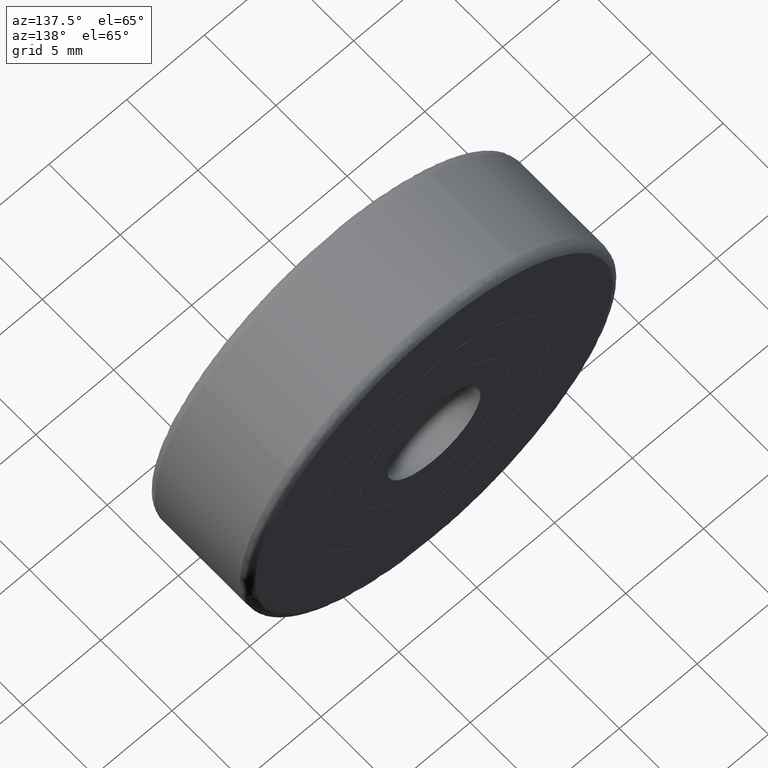
[diagram: clean part render]
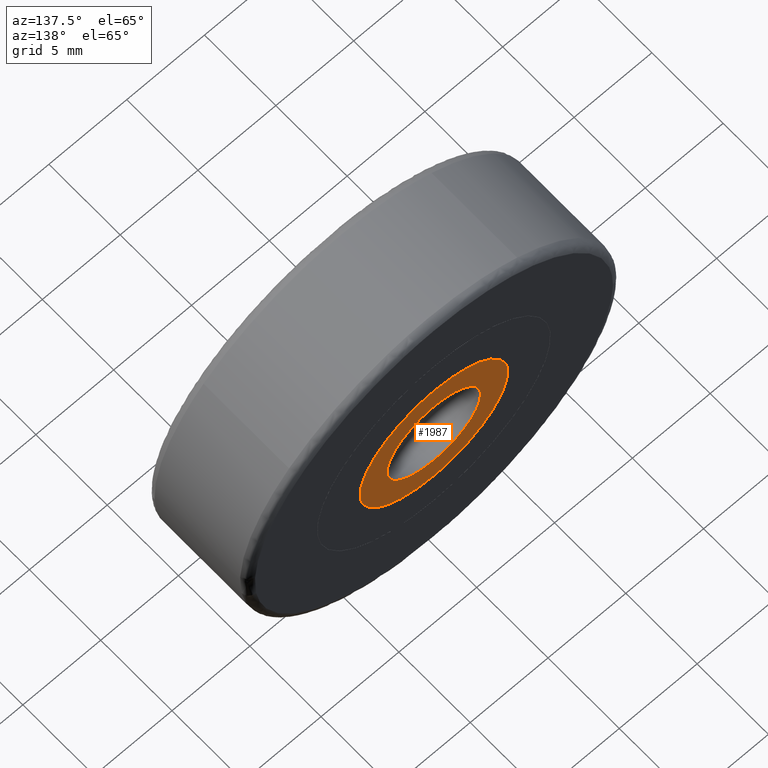
[diagram: same view with one face highlighted and labeled with its STEP entity id]
A machine part, auxiliary view. The second image highlights one B-rep face of the part: STEP entity #1987.
In plain terms, the highlighted face is a freeform B-spline surface patch.
Its self-contained STEP definition (entity closure, byte-faithful):
#654=CARTESIAN_POINT('',(4.735358023293785,7.0,-0.372671961851512));
#655=VERTEX_POINT('',#654);
#661=CARTESIAN_POINT('',(0.0,7.0,4.750000000000000));
#662=VERTEX_POINT('',#661);
#663=CARTESIAN_POINT('',(4.735358023293785,6.999999999999999,-0.372671961851512));
#664=CARTESIAN_POINT('',(4.750000000000000,7.000000000000001,-0.186623616572936));
#665=CARTESIAN_POINT('',(4.750000000000000,7.0,0.0));
#666=CARTESIAN_POINT('',(4.750000000000000,6.999999999999999,4.750000000000000));
#667=CARTESIAN_POINT('',(0.0,7.0,4.750000000000000));
#675=(BOUNDED_CURVE()B_SPLINE_CURVE(2,(#663,#664,#665,#666,#667),.UNSPECIFIED.,.F.,.U.)B_SPLINE_CURVE_WITH_KNOTS((3,2,3),(0.736331617132616,0.750000000000000,1.0),.UNSPECIFIED.)CURVE()GEOMETRIC_REPRESENTATION_ITEM()RATIONAL_B_SPLINE_CURVE((0.969724016683795,0.983986493383989,1.0,0.707106781186548,1.0))REPRESENTATION_ITEM(''));
#676=EDGE_CURVE('',#655,#662,#675,.T.);
#678=CARTESIAN_POINT('',(-4.735358023293785,7.0,0.372671961851512));
#679=VERTEX_POINT('',#678);
#680=CARTESIAN_POINT('',(0.0,7.0,4.750000000000000));
#681=CARTESIAN_POINT('',(-4.390862967253381,6.999999999999998,4.749999999999998));
#682=CARTESIAN_POINT('',(-4.735358023293785,7.0,0.372671961851512));
#690=(BOUNDED_CURVE()B_SPLINE_CURVE(2,(#680,#681,#682),.UNSPECIFIED.,.F.,.U.)B_SPLINE_CURVE_WITH_KNOTS((3,3),(0.0,0.236331617132616),.UNSPECIFIED.)CURVE()GEOMETRIC_REPRESENTATION_ITEM()RATIONAL_B_SPLINE_CURVE((1.0,0.723120287802558,0.969724016683795))REPRESENTATION_ITEM(''));
#691=EDGE_CURVE('',#662,#679,#690,.T.);
#741=CARTESIAN_POINT('',(0.0,7.0,-4.750000000000000));
#742=VERTEX_POINT('',#741);
#743=CARTESIAN_POINT('',(-4.735358023293785,7.0,0.372671961851512));
#744=CARTESIAN_POINT('',(-4.750000000000002,7.000000000000001,0.186623616572935));
#745=CARTESIAN_POINT('',(-4.750000000000000,7.0,0.0));
#746=CARTESIAN_POINT('',(-4.750000000000000,6.999999999999999,-4.750000000000000));
#747=CARTESIAN_POINT('',(0.0,7.0,-4.750000000000000));
#755=(BOUNDED_CURVE()B_SPLINE_CURVE(2,(#743,#744,#745,#746,#747),.UNSPECIFIED.,.F.,.U.)B_SPLINE_CURVE_WITH_KNOTS((3,2,3),(0.236331617132616,0.250000000000000,0.500000000000000),.UNSPECIFIED.)CURVE()GEOMETRIC_REPRESENTATION_ITEM()RATIONAL_B_SPLINE_CURVE((0.969724016683795,0.983986493383989,1.0,0.707106781186548,1.0))REPRESENTATION_ITEM(''));
#756=EDGE_CURVE('',#679,#742,#755,.T.);
#758=CARTESIAN_POINT('',(0.0,7.0,-4.750000000000000));
#759=CARTESIAN_POINT('',(4.390862967253381,7.0,-4.749999999999998));
#760=CARTESIAN_POINT('',(4.735358023293785,6.999999999999999,-0.372671961851512));
#768=(BOUNDED_CURVE()B_SPLINE_CURVE(2,(#758,#759,#760),.UNSPECIFIED.,.F.,.U.)B_SPLINE_CURVE_WITH_KNOTS((3,3),(0.500000000000000,0.736331617132616),.UNSPECIFIED.)CURVE()GEOMETRIC_REPRESENTATION_ITEM()RATIONAL_B_SPLINE_CURVE((1.0,0.723120287802558,0.969724016683795))REPRESENTATION_ITEM(''));
#769=EDGE_CURVE('',#742,#655,#768,.T.);
#1430=CARTESIAN_POINT('',(2.979028579089628,7.0,-0.354102703981811));
#1431=VERTEX_POINT('',#1430);
#1432=CARTESIAN_POINT('',(0.0,7.0,3.0));
#1433=VERTEX_POINT('',#1432);
#1434=CARTESIAN_POINT('',(2.979028579089627,7.000000000000001,-0.354102703981811));
#1435=CARTESIAN_POINT('',(3.000000000000000,7.0,-0.177672358967388));
#1436=CARTESIAN_POINT('',(3.0,7.0,-1.642359E-016));
#1437=CARTESIAN_POINT('',(3.0,6.999999999999999,3.0));
#1438=CARTESIAN_POINT('',(0.0,7.0,3.0));
#1446=(BOUNDED_CURVE()B_SPLINE_CURVE(2,(#1434,#1435,#1436,#1437,#1438),.UNSPECIFIED.,.F.,.U.)B_SPLINE_CURVE_WITH_KNOTS((3,2,3),(0.229562473514335,0.250000000000000,0.500000000000000),.UNSPECIFIED.)CURVE()GEOMETRIC_REPRESENTATION_ITEM()RATIONAL_B_SPLINE_CURVE((0.956026754185320,0.976055948332114,1.0,0.707106781186548,1.0))REPRESENTATION_ITEM(''));
#1447=EDGE_CURVE('',#1431,#1433,#1446,.T.);
#1488=CARTESIAN_POINT('',(-2.994404676346416,6.999999999999965,0.183141022858116));
#1489=VERTEX_POINT('',#1488);
#1495=CARTESIAN_POINT('',(0.0,7.0,3.0));
#1496=CARTESIAN_POINT('',(-2.822122540139069,6.999999999999999,2.999999999999999));
#1497=CARTESIAN_POINT('',(-2.994404676346416,6.999999999999965,0.183141022858116));
#1505=(BOUNDED_CURVE()B_SPLINE_CURVE(2,(#1495,#1496,#1497),.UNSPECIFIED.,.F.,.U.)B_SPLINE_CURVE_WITH_KNOTS((3,3),(0.500000000000000,0.739333227063064),.UNSPECIFIED.)CURVE()GEOMETRIC_REPRESENTATION_ITEM()RATIONAL_B_SPLINE_CURVE((1.0,0.719603683025953,0.976072609235878))REPRESENTATION_ITEM(''));
#1506=EDGE_CURVE('',#1433,#1489,#1505,.T.);
#1529=CARTESIAN_POINT('',(0.0,7.0,-3.0));
#1530=VERTEX_POINT('',#1529);
#1531=CARTESIAN_POINT('',(0.0,7.0,-3.0));
#1532=CARTESIAN_POINT('',(2.664523577833322,6.999999999999999,-3.0));
#1533=CARTESIAN_POINT('',(2.979028579089627,7.0,-0.354102703981811));
#1541=(BOUNDED_CURVE()B_SPLINE_CURVE(2,(#1531,#1532,#1533),.UNSPECIFIED.,.F.,.U.)B_SPLINE_CURVE_WITH_KNOTS((3,3),(0.0,0.229562473514335),.UNSPECIFIED.)CURVE()GEOMETRIC_REPRESENTATION_ITEM()RATIONAL_B_SPLINE_CURVE((1.0,0.731050832854434,0.956026754185320))REPRESENTATION_ITEM(''));
#1542=EDGE_CURVE('',#1530,#1431,#1541,.T.);
#1544=CARTESIAN_POINT('',(-2.994404676346416,6.999999999999965,0.183141022858116));
#1545=CARTESIAN_POINT('',(-3.000000000000001,7.0,0.091655985579796));
#1546=CARTESIAN_POINT('',(-3.0,7.0,-1.642359E-016));
#1547=CARTESIAN_POINT('',(-3.0,6.999999999999999,-3.0));
#1548=CARTESIAN_POINT('',(0.0,7.0,-3.0));
#1556=(BOUNDED_CURVE()B_SPLINE_CURVE(2,(#1544,#1545,#1546,#1547,#1548),.UNSPECIFIED.,.F.,.U.)B_SPLINE_CURVE_WITH_KNOTS((3,2,3),(0.739333227063064,0.750000000000000,1.0),.UNSPECIFIED.)CURVE()GEOMETRIC_REPRESENTATION_ITEM()RATIONAL_B_SPLINE_CURVE((0.976072609235878,0.987503098160595,1.0,0.707106781186548,1.0))REPRESENTATION_ITEM(''));
#1557=EDGE_CURVE('',#1489,#1530,#1556,.T.);
#1970=CARTESIAN_POINT('',(-5.223075342990150,7.0,5.224524981587156));
#1971=CARTESIAN_POINT('',(-5.223075342990150,7.0,-5.224525236397013));
#1972=CARTESIAN_POINT('',(5.223075342990148,7.0,5.224524981587156));
#1973=CARTESIAN_POINT('',(5.223075342990148,7.0,-5.224525236397013));
#1974=B_SPLINE_SURFACE_WITH_KNOTS('',1,1,((#1970,#1972),(#1971,#1973)),.UNSPECIFIED.,.F.,.F.,.U.,(2,2),(2,2),(0.0,10.449050217984171),(0.0,10.446150685980299),.UNSPECIFIED.);
#1975=ORIENTED_EDGE('',*,*,#676,.F.);
#1976=ORIENTED_EDGE('',*,*,#769,.F.);
#1977=ORIENTED_EDGE('',*,*,#756,.F.);
#1978=ORIENTED_EDGE('',*,*,#691,.F.);
#1979=EDGE_LOOP('',(#1975,#1976,#1977,#1978));
#1980=FACE_OUTER_BOUND('',#1979,.T.);
#1981=ORIENTED_EDGE('',*,*,#1506,.T.);
#1982=ORIENTED_EDGE('',*,*,#1557,.T.);
#1983=ORIENTED_EDGE('',*,*,#1542,.T.);
#1984=ORIENTED_EDGE('',*,*,#1447,.T.);
#1985=EDGE_LOOP('',(#1981,#1982,#1983,#1984));
#1986=FACE_BOUND('',#1985,.T.);
#1987=ADVANCED_FACE('',(#1980,#1986),#1974,.F.);